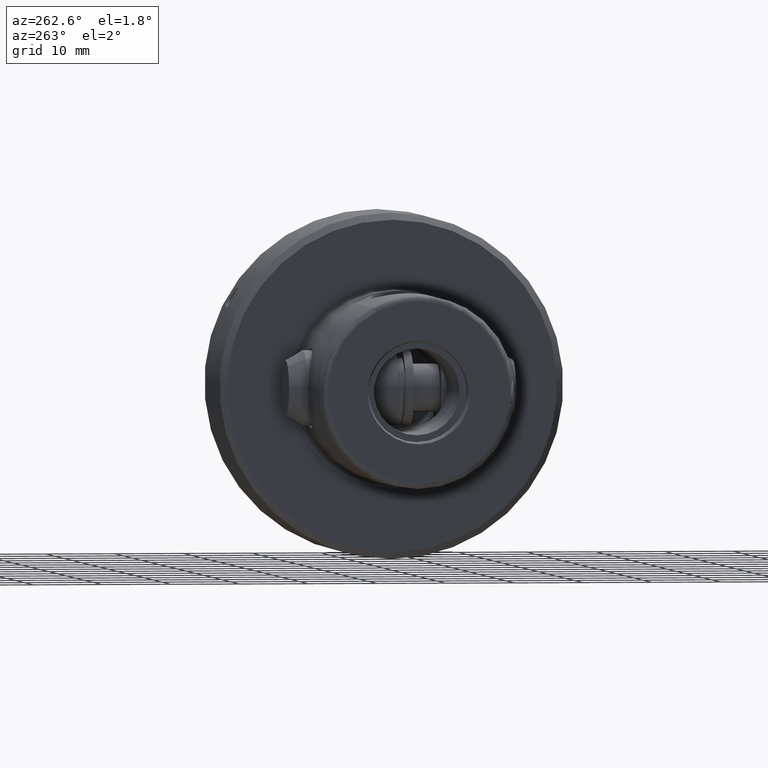
[diagram: clean part render]
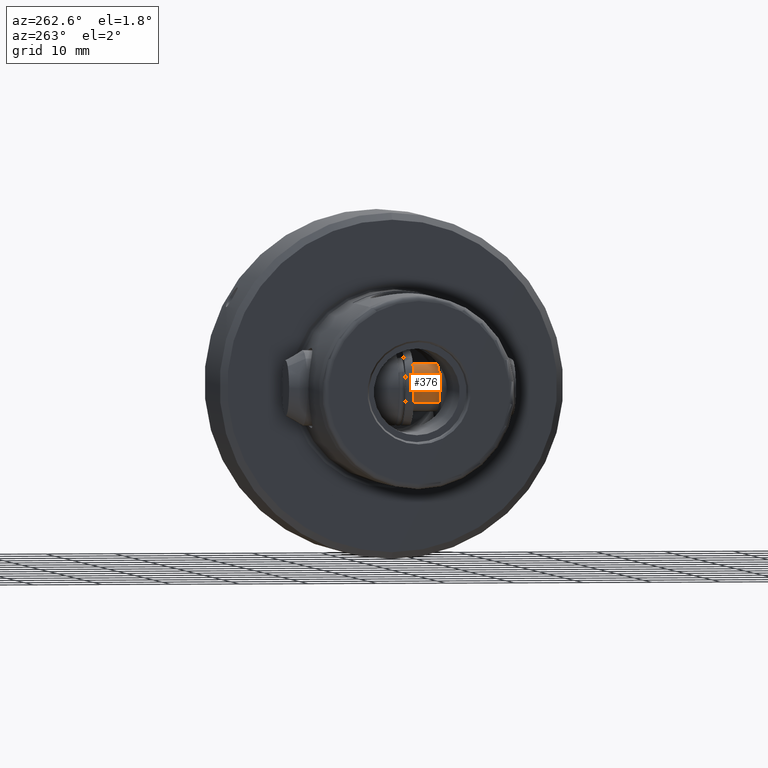
[diagram: same view with one face highlighted and labeled with its STEP entity id]
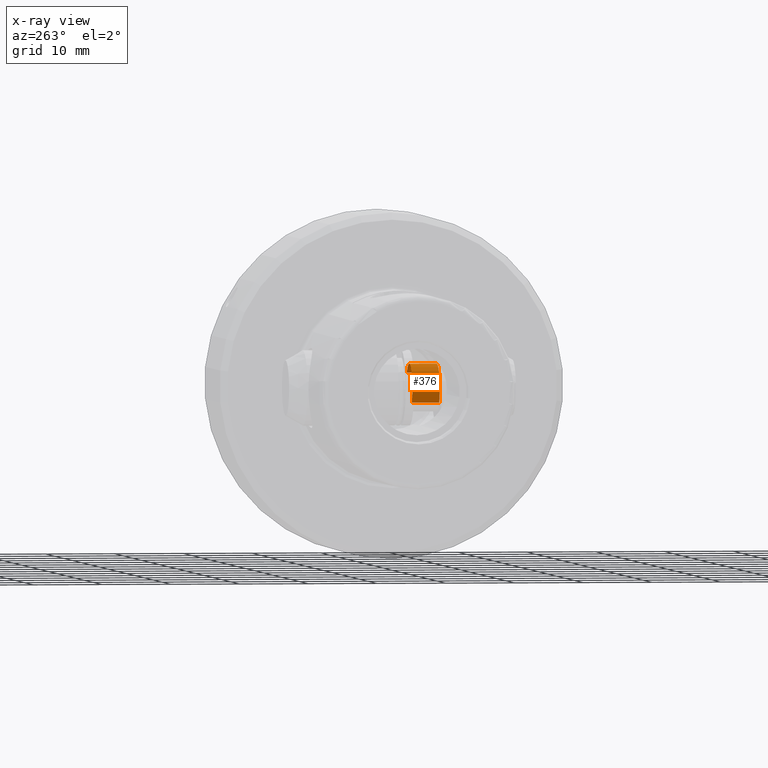
[diagram: x-ray of the same camera — body ghosted, the highlighted face saturated]
A machine part, auxiliary view. The second image highlights one B-rep face of the part: STEP entity #376.
The next image is the same camera in x-ray: the body ghosted, the highlighted face saturated — about 0% of this face is hidden behind the body in this view.
In plain terms, the highlighted cylindrical surface (edge-blend (fillet) strip) has radius 3.45 mm, axis along (-0, -1, -0).
Its self-contained STEP definition (entity closure, byte-faithful):
#17 = LINE ( 'NONE', #6061, #2448 ) ;
#53 = ORIENTED_EDGE ( 'NONE', *, *, #8063, .F. ) ;
#376 = ADVANCED_FACE ( 'NONE', ( #9397 ), #7414, .T. ) ;
#538 = CARTESIAN_POINT ( 'NONE',  ( 10.99999999999996800, 4.163336342344337000E-014, -1.249000902703301100E-013 ) ) ;
#622 = CARTESIAN_POINT ( 'NONE',  ( 14.99999999999996800, 3.450000000000014800, 2.309896739581426200E-016 ) ) ;
#786 = EDGE_CURVE ( 'NONE', #2620, #1307, #17, .T. ) ;
#888 = ORIENTED_EDGE ( 'NONE', *, *, #786, .T. ) ;
#1008 = CARTESIAN_POINT ( 'NONE',  ( 10.99999999999996800, -3.449999999999966000, -1.247085767985822800E-013 ) ) ;
#1133 = VERTEX_POINT ( 'NONE', #9008 ) ;
#1307 = VERTEX_POINT ( 'NONE', #1008 ) ;
#1780 = EDGE_LOOP ( 'NONE', ( #53, #2878, #888, #6448 ) ) ;
#2448 = VECTOR ( 'NONE', #4033, 1000.000000000000000 ) ;
#2620 = VERTEX_POINT ( 'NONE', #7079 ) ;
#2666 = DIRECTION ( 'NONE',  ( -1.000000000000000000, -1.736302482672551900E-016, -1.355854680848614000E-031 ) ) ;
#2878 = ORIENTED_EDGE ( 'NONE', *, *, #7960, .T. ) ;
#3045 = CIRCLE ( 'NONE', #8707, 3.450000000000007700 ) ;
#3129 = AXIS2_PLACEMENT_3D ( 'NONE', #538, #2666, #5584 ) ;
#3661 = AXIS2_PLACEMENT_3D ( 'NONE', #8600, #4106, #9289 ) ;
#4033 = DIRECTION ( 'NONE',  ( -1.000000000000000000, -1.736302482672551900E-016, -1.355854680848614000E-031 ) ) ;
#4094 = CARTESIAN_POINT ( 'NONE',  ( 14.99999999999996800, 1.387778780781445700E-014, -1.110223024625156500E-013 ) ) ;
#4106 = DIRECTION ( 'NONE',  ( -1.000000000000000000, -1.736302482672551900E-016, -1.355854680848614000E-031 ) ) ;
#4155 = DIRECTION ( 'NONE',  ( 0.0000000000000000000, -1.000000000000000000, 5.551115123125694600E-017 ) ) ;
#5027 = DIRECTION ( 'NONE',  ( -1.000000000000000000, -1.736302482672551900E-016, -1.355854680848614000E-031 ) ) ;
#5221 = VERTEX_POINT ( 'NONE', #622 ) ;
#5584 = DIRECTION ( 'NONE',  ( 0.0000000000000000000, -1.000000000000000000, 5.551115123125694600E-017 ) ) ;
#5827 = LINE ( 'NONE', #8742, #6530 ) ;
#6061 = CARTESIAN_POINT ( 'NONE',  ( 5.990243565220304200E-016, -3.450000000000007700, 1.915134717478395400E-016 ) ) ;
#6448 = ORIENTED_EDGE ( 'NONE', *, *, #9431, .F. ) ;
#6530 = VECTOR ( 'NONE', #5027, 1000.000000000000000 ) ;
#7079 = CARTESIAN_POINT ( 'NONE',  ( 14.99999999999996800, -3.449999999999994000, -1.108307889907678100E-013 ) ) ;
#7414 = CYLINDRICAL_SURFACE ( 'NONE', #3661, 3.450000000000007700 ) ;
#7960 = EDGE_CURVE ( 'NONE', #5221, #2620, #3045, .T. ) ;
#8063 = EDGE_CURVE ( 'NONE', #5221, #1133, #5827, .T. ) ;
#8600 = CARTESIAN_POINT ( 'NONE',  ( 0.0000000000000000000, 0.0000000000000000000, 0.0000000000000000000 ) ) ;
#8707 = AXIS2_PLACEMENT_3D ( 'NONE', #4094, #9277, #4155 ) ;
#8742 = CARTESIAN_POINT ( 'NONE',  ( -5.990243565220304200E-016, 3.450000000000007700, 2.309896739579982600E-016 ) ) ;
#8823 = CIRCLE ( 'NONE', #3129, 3.450000000000007700 ) ;
#9008 = CARTESIAN_POINT ( 'NONE',  ( 10.99999999999996800, 3.450000000000041900, 2.309896739591533500E-016 ) ) ;
#9277 = DIRECTION ( 'NONE',  ( -1.000000000000000000, -1.736302482672551900E-016, -1.355854680848614000E-031 ) ) ;
#9289 = DIRECTION ( 'NONE',  ( 1.736302482672548000E-016, -1.000000000000000000, 5.551115123125771000E-017 ) ) ;
#9397 = FACE_OUTER_BOUND ( 'NONE', #1780, .T. ) ;
#9431 = EDGE_CURVE ( 'NONE', #1133, #1307, #8823, .T. ) ;